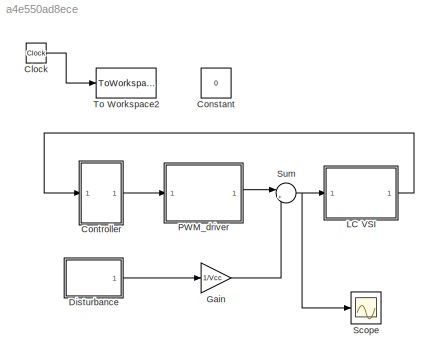
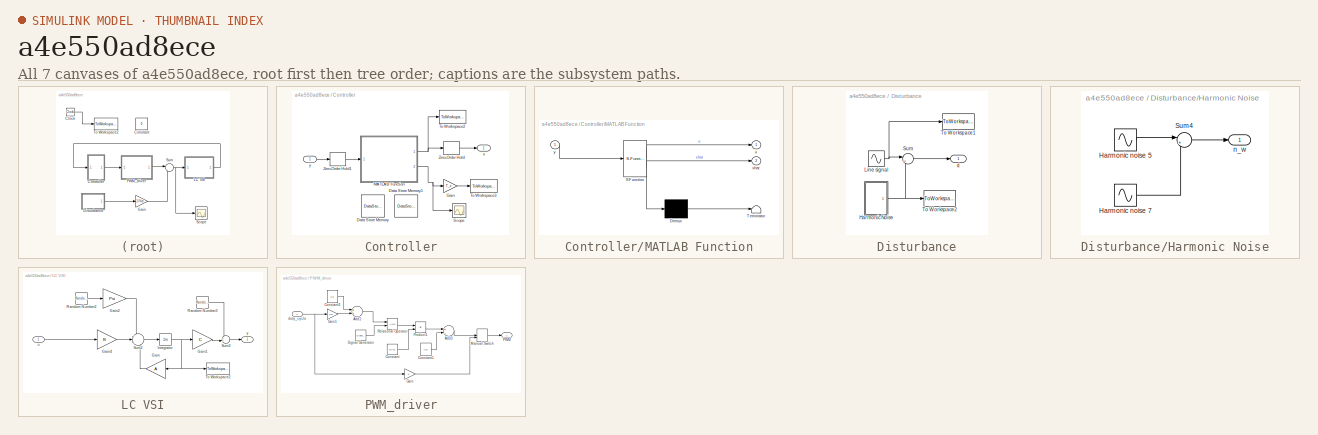
[diagram: thumbnail index - all 7 canvases of the model, root first then tree order]
MODEL slx_a4e550ad8ece
KIND model
CONFIG AbsTol = auto
CONFIG EnableMultiTasking = on
CONFIG FixedStep = 1/100000
CONFIG MaxStep = auto
CONFIG MinStep = auto
CONFIG RelTol = 1e-3
CONFIG SampleTimeConstraint = Unconstrained
CONFIG Solver = ode5
CONFIG SolverName = ode5
CONFIG StartTime = 0.0
CONFIG StopTime = 1
BLOCK [Clock] Clock
BLOCK [Constant] Constant
  Value = 0
BLOCK [SubSystem] Controller
  Ports = [1, 1]
  RequestExecContextInheritance = off
  Variant = off
BLOCK [DataStoreMemory] Controller/Data Store Memory
  DataStoreName = u_1
  Dimensions = 1
  OutDataTypeStr = double
  ReadBeforeWriteMsg = warning
  ShowAdditionalParam = off
  SignalType = real
  WriteAfterReadMsg = warning
  WriteAfterWriteMsg = warning
BLOCK [DataStoreMemory] Controller/Data Store Memory1
  DataStoreName = xhat_1
  Dimensions = 8
  InitialValue = [0 0 0 0 0 0 0 0]
  OutDataTypeStr = double
  ShowAdditionalParam = off
  SignalType = real
  WriteAfterReadMsg = warning
  WriteAfterWriteMsg = warning
BLOCK [Gain] Controller/Gain
  Gain = T_x
  Multiplication = Matrix(u*K)
  OutDataTypeStr = Inherit: Inherit via internal rule
  ParamDataTypeStr = Inherit: Inherit via internal rule
  SaturateOnIntegerOverflow = off
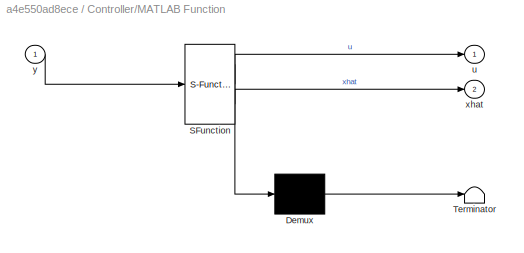
BLOCK [SubSystem] Controller/MATLAB Function
  ErrorFcn = Stateflow.Translate.translate
  PermitHierarchicalResolution = ExplicitOnly
  Ports = [1, 2]
  RequestExecContextInheritance = off
  SFBlockType = MATLAB Function
  TreatAsAtomicUnit = on
  Variant = off
BLOCK [Demux] Controller/MATLAB Function/ Demux 
  Outputs = 1
  Ports = [1, 1]
BLOCK [S-Function] Controller/MATLAB Function/ SFunction 
  EnableBusSupport = on
  FunctionName = sf_sfun
  Parameters = C_obsv,C_ww,Gamma_obsv,Kp,L,Phi_obsv,T_u,T_x,T_y
  PortCounts = [1 3]
  Ports = [1, 3]
  SFcnIsStateOwnerBlock = off
  SFunctionDeploymentMode = off
  Tag = Stateflow S-Function LC_VSI_filter 2
BLOCK [Terminator] Controller/MATLAB Function/ Terminator 
BLOCK [Outport] Controller/MATLAB Function/u
  IconDisplay = Port number
BLOCK [Outport] Controller/MATLAB Function/xhat
  IconDisplay = Port number
  Port = 2
BLOCK [Inport] Controller/MATLAB Function/y
  IconDisplay = Port number
BLOCK [Scope] Controller/Scope
  NumInputPorts = 1
  Ports = [1]
  ScopeSpecificationString = Simulink.scopes.TimeScopeBlockCfg('CurrentConfiguration', extmgr.ConfigurationSet(extmgr.Configuration('Core','General UI',true),extmgr.Configuration('Core','Source UI',true),extmgr.Configuration('Sources','WiredSimulink',true,'DataLoggingVariableName','ScopeData1'),extmgr.Configuration('Visuals','Time Domain',true,'SerializedDisplays',{struct('MinYLimReal','-0.01824','MaxYLimReal','0.02117','YLab...<+1585ch>
BLOCK [ToWorkspace] Controller/To Workspace2
  FixptAsFi = on
  MaxDataPoints = inf
  Ports = [1]
  SampleTime = Ta
  Save2DSignal = 2-D array (concatenate along first dimension)
  VariableName = pwm
BLOCK [ToWorkspace] Controller/To Workspace3
  FixptAsFi = on
  MaxDataPoints = inf
  Ports = [1]
  SampleTime = Ta
  Save2DSignal = 2-D array (concatenate along first dimension)
  VariableName = xhat
BLOCK [ZeroOrderHold] Controller/Zero-Order Hold
  SampleTime = Ta
BLOCK [ZeroOrderHold] Controller/Zero-Order Hold1
  SampleTime = Ta
BLOCK [Outport] Controller/u
  IconDisplay = Port number
BLOCK [Inport] Controller/y
  IconDisplay = Port number
BLOCK [SubSystem] Disturbance
  Ports = [0, 1]
  RequestExecContextInheritance = off
  Variant = off
BLOCK [SubSystem] Disturbance/Harmonic Noise
  Ports = [0, 1]
  RequestExecContextInheritance = off
  Variant = off
BLOCK [Sin] Disturbance/Harmonic Noise/Harmonic noise 5
  Amplitude = noises.('w_5').A
  Frequency = noises.('w_5').w
  Phase = noises.('w_5').phi
  Ports = [0, 1]
  SampleTime = 0
BLOCK [Sin] Disturbance/Harmonic Noise/Harmonic noise 7
  Amplitude = noises.('w_7').A
  Frequency = noises.('w_7').w
  Phase = noises.('w_7').phi
  Ports = [0, 1]
  SampleTime = 0
BLOCK [Sum] Disturbance/Harmonic Noise/Sum4
  IconShape = round
  InputSameDT = off
  Inputs = |++
  OutDataTypeStr = Inherit: Inherit via internal rule
  Ports = [2, 1]
  SaturateOnIntegerOverflow = off
BLOCK [Outport] Disturbance/Harmonic Noise/n_w
  IconDisplay = Port number
BLOCK [Sin] Disturbance/Line signal
  Amplitude = noises.('w_1').A
  Frequency = noises.('w_1').w
  Phase = noises.('w_1').phi
  Ports = [0, 1]
  SampleTime = 0
BLOCK [Sum] Disturbance/Sum
  IconShape = round
  InputSameDT = off
  Inputs = |++
  OutDataTypeStr = Inherit: Inherit via internal rule
  Ports = [2, 1]
  SaturateOnIntegerOverflow = off
BLOCK [ToWorkspace] Disturbance/To Workspace1
  FixptAsFi = on
  MaxDataPoints = inf
  Ports = [1]
  SampleTime = Ta
  Save2DSignal = 2-D array (concatenate along first dimension)
  VariableName = line_signal
BLOCK [ToWorkspace] Disturbance/To Workspace2
  FixptAsFi = on
  MaxDataPoints = inf
  Ports = [1]
  SampleTime = Ta
  Save2DSignal = 2-D array (concatenate along first dimension)
  VariableName = noise
BLOCK [Outport] Disturbance/d
  IconDisplay = Port number
BLOCK [Gain] Gain
  Gain = 1/Vcc
  OutDataTypeStr = Inherit: Inherit via internal rule
  ParamDataTypeStr = Inherit: Inherit via internal rule
  SaturateOnIntegerOverflow = off
BLOCK [SubSystem] LC VSI
  Ports = [1, 1]
  RequestExecContextInheritance = off
  Variant = off
BLOCK [Gain] LC VSI/Gain
  Gain = A
  Multiplication = Matrix(K*u) (u vector)
  OutDataTypeStr = Inherit: Inherit via internal rule
  ParamDataTypeStr = Inherit: Inherit via internal rule
  SaturateOnIntegerOverflow = off
BLOCK [Gain] LC VSI/Gain1
  Gain = C
  Multiplication = Matrix(K*u) (u vector)
  OutDataTypeStr = Inherit: Inherit via internal rule
  ParamDataTypeStr = Inherit: Inherit via internal rule
  SaturateOnIntegerOverflow = off
BLOCK [Gain] LC VSI/Gain2
  Gain = Psi
  Multiplication = Matrix(K*u) (u vector)
  OutDataTypeStr = Inherit: Inherit via internal rule
  ParamDataTypeStr = Inherit: Inherit via internal rule
  SaturateOnIntegerOverflow = off
BLOCK [Gain] LC VSI/Gain4
  Gain = B
  Multiplication = Matrix(K*u) (u vector)
  OutDataTypeStr = Inherit: Inherit via internal rule
  ParamDataTypeStr = Inherit: Inherit via internal rule
  SaturateOnIntegerOverflow = off
BLOCK [Integrator] LC VSI/Integrator
  Ports = [1, 1]
BLOCK [RandomNumber] LC VSI/Random Number2
  SampleTime = Ta
BLOCK [RandomNumber] LC VSI/Random Number3
  SampleTime = Ta
BLOCK [Sum] LC VSI/Sum2
  IconShape = round
  InputSameDT = off
  Inputs = +|+|+
  OutDataTypeStr = Inherit: Inherit via internal rule
  Ports = [3, 1]
  SaturateOnIntegerOverflow = off
BLOCK [Sum] LC VSI/Sum3
  IconShape = round
  InputSameDT = off
  Inputs = ++|
  OutDataTypeStr = Inherit: Inherit via internal rule
  Ports = [2, 1]
  SaturateOnIntegerOverflow = off
BLOCK [ToWorkspace] LC VSI/To Workspace2
  FixptAsFi = on
  MaxDataPoints = inf
  Ports = [1]
  SampleTime = Ta
  Save2DSignal = 2-D array (concatenate along first dimension)
  VariableName = x
BLOCK [Inport] LC VSI/u
  IconDisplay = Port number
BLOCK [Outport] LC VSI/y
  IconDisplay = Port number
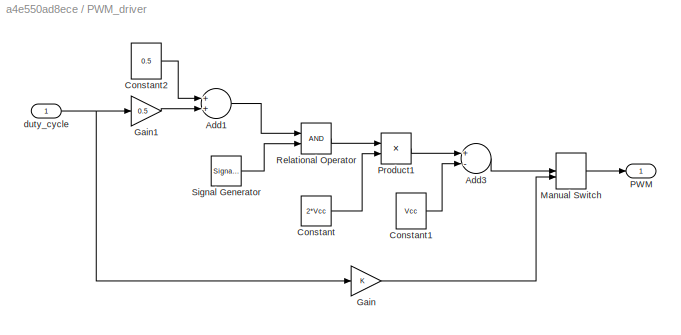
BLOCK [SubSystem] PWM_driver
  Ports = [1, 1]
  RequestExecContextInheritance = off
  Variant = off
BLOCK [Sum] PWM_driver/Add1
  InputSameDT = off
  OutDataTypeStr = Inherit: Inherit via internal rule
  Ports = [2, 1]
  SaturateOnIntegerOverflow = off
BLOCK [Sum] PWM_driver/Add3
  InputSameDT = off
  Inputs = +-
  OutDataTypeStr = Inherit: Inherit via internal rule
  Ports = [2, 1]
  SaturateOnIntegerOverflow = off
BLOCK [Constant] PWM_driver/Constant
  Value = 2*Vcc
BLOCK [Constant] PWM_driver/Constant1
  Value = Vcc
BLOCK [Constant] PWM_driver/Constant2
  Value = 0.5
BLOCK [Gain] PWM_driver/Gain
  OutDataTypeStr = Inherit: Inherit via internal rule
  ParamDataTypeStr = Inherit: Inherit via internal rule
  SaturateOnIntegerOverflow = off
BLOCK [Gain] PWM_driver/Gain1
  Gain = 0.5
  OutDataTypeStr = Inherit: Inherit via internal rule
  ParamDataTypeStr = Inherit: Inherit via internal rule
  SaturateOnIntegerOverflow = off
BLOCK [ManualSwitch] PWM_driver/Manual Switch
  CurrentSetting = 0
BLOCK [Outport] PWM_driver/PWM
  IconDisplay = Port number
BLOCK [Product] PWM_driver/Product1
  InputSameDT = off
  OutDataTypeStr = Inherit: Inherit via internal rule
  Ports = [2, 1]
  RndMeth = Floor
  SaturateOnIntegerOverflow = off
BLOCK [RelationalOperator] PWM_driver/Relational Operator
  InputSameDT = off
  OutDataTypeStr = boolean
  Ports = [2, 1]
BLOCK [SignalGenerator] PWM_driver/Signal Generator
  Frequency = fa
  Ports = [0, 1]
  WaveForm = sawtooth
BLOCK [Inport] PWM_driver/duty_cycle
  IconDisplay = Port number
BLOCK [Scope] Scope
  NumInputPorts = 1
  Ports = [1]
  ScopeSpecificationString = Simulink.scopes.TimeScopeBlockCfg('CurrentConfiguration', extmgr.ConfigurationSet(extmgr.Configuration('Core','General UI',true),extmgr.Configuration('Core','Source UI',true),extmgr.Configuration('Sources','WiredSimulink',true),extmgr.Configuration('Visuals','Time Domain',true,'SerializedDisplays',{struct('MinYLimReal','-1.14752','MaxYLimReal','1.14895','YLabelReal','','MinYLimMag','0.00000','MaxY...<+1352ch>
BLOCK [Sum] Sum
  IconShape = round
  InputSameDT = off
  Inputs = |+-
  OutDataTypeStr = Inherit: Inherit via internal rule
  Ports = [2, 1]
  SaturateOnIntegerOverflow = off
BLOCK [ToWorkspace] To Workspace2
  FixptAsFi = on
  MaxDataPoints = inf
  Ports = [1]
  SampleTime = Ta
  Save2DSignal = 2-D array (concatenate along first dimension)
  VariableName = time
LINE Clock:1 -> To Workspace2:1
LINE Controller/Gain:1 -> Controller/To Workspace3:1
NET Controller/MATLAB Function:1 -> Controller/To Workspace2:1, Controller/Zero-Order Hold:1
NET Controller/MATLAB Function:2 -> Controller/Gain:1, Controller/Scope:1
LINE Controller/Zero-Order Hold1:1 -> Controller/MATLAB Function:1
LINE Controller/Zero-Order Hold:1 -> Controller/u:1
LINE Controller/y:1 -> Controller/Zero-Order Hold1:1
LINE Controller:1 -> PWM_driver:1
LINE Disturbance/Harmonic Noise/Harmonic noise 5:1 -> Disturbance/Harmonic Noise/Sum4:1
LINE Disturbance/Harmonic Noise/Harmonic noise 7:1 -> Disturbance/Harmonic Noise/Sum4:2
LINE Disturbance/Harmonic Noise/Sum4:1 -> Disturbance/Harmonic Noise/n_w:1
NET Disturbance/Harmonic Noise:1 -> Disturbance/Sum:2, Disturbance/To Workspace2:1
NET Disturbance/Line signal:1 -> Disturbance/Sum:1, Disturbance/To Workspace1:1
LINE Disturbance/Sum:1 -> Disturbance/d:1
LINE Disturbance:1 -> Gain:1
LINE Gain:1 -> Sum:2
LINE LC VSI/Gain1:1 -> LC VSI/Sum3:2
LINE LC VSI/Gain2:1 -> LC VSI/Sum2:1
LINE LC VSI/Gain4:1 -> LC VSI/Sum2:2
LINE LC VSI/Gain:1 -> LC VSI/Sum2:3
NET LC VSI/Integrator:1 -> LC VSI/Gain1:1, LC VSI/Gain:1, LC VSI/To Workspace2:1
LINE LC VSI/Random Number2:1 -> LC VSI/Gain2:1
LINE LC VSI/Random Number3:1 -> LC VSI/Sum3:1
LINE LC VSI/Sum2:1 -> LC VSI/Integrator:1
LINE LC VSI/Sum3:1 -> LC VSI/y:1
LINE LC VSI/u:1 -> LC VSI/Gain4:1
LINE LC VSI:1 -> Controller:1
LINE PWM_driver/Add1:1 -> PWM_driver/Relational Operator:1
LINE PWM_driver/Add3:1 -> PWM_driver/Manual Switch:1
LINE PWM_driver/Constant1:1 -> PWM_driver/Add3:2
LINE PWM_driver/Constant2:1 -> PWM_driver/Add1:1
LINE PWM_driver/Constant:1 -> PWM_driver/Product1:2
LINE PWM_driver/Gain1:1 -> PWM_driver/Add1:2
LINE PWM_driver/Gain:1 -> PWM_driver/Manual Switch:2
LINE PWM_driver/Manual Switch:1 -> PWM_driver/PWM:1
LINE PWM_driver/Product1:1 -> PWM_driver/Add3:1
LINE PWM_driver/Relational Operator:1 -> PWM_driver/Product1:1
LINE PWM_driver/Signal Generator:1 -> PWM_driver/Relational Operator:2
NET PWM_driver/duty_cycle:1 -> PWM_driver/Gain1:1, PWM_driver/Gain:1
LINE PWM_driver:1 -> Sum:1
NET Sum:1 -> LC VSI:1, Scope:1
note: NET lines group one-source signal fan-out (src -> all destinations, sorted); 1:1 wires keep LINE
CHART Controller/MATLAB Function states=1 transitions=1
  STATE_LABEL 'eML_blk_kernel()'
  STATE_LABEL 'SCRIPT:\nfunction [u, xhat] = control(y, Phi_obsv, Gamma_obsv, C_obsv, ...\n                             L, Kp, C_ww, T_y, T_x, T_u)\n    global u_1 xhat_1;\n    \n    y = T_y*y;\n    \n    % Augmented noise predictor\n    xbar = Phi_obsv*xhat_1 + Gamma_obsv*u_1;\n    xhat = xbar + L*(y - C_obsv*xbar);\n       \n    xtilde = xhat(1:2);\n    wtilde = C_ww*xhat(3:end);\n    \n     line_tilde = wtilde(1);\n     noi...<+212ch>'
